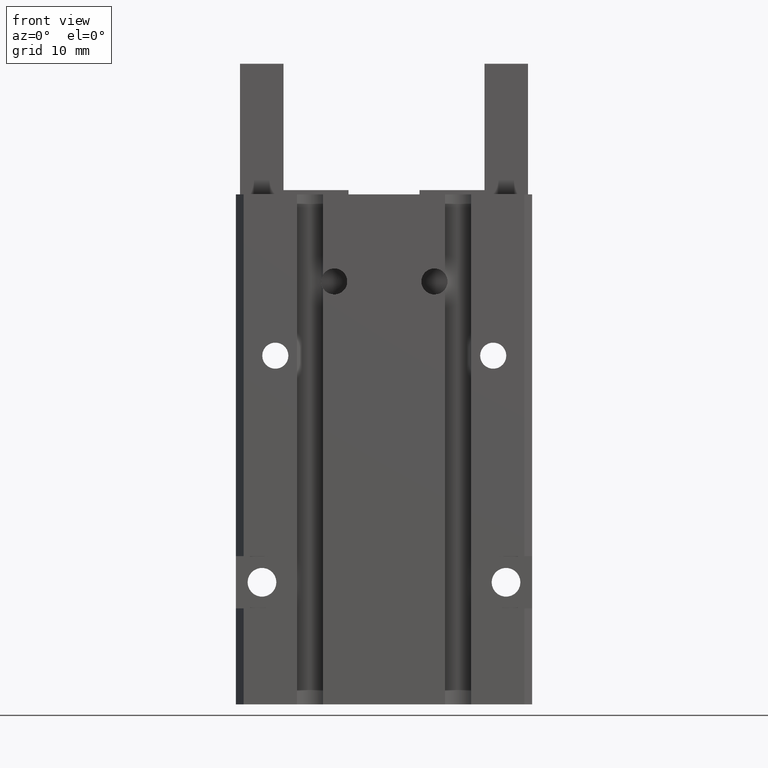
[diagram: clean part render]
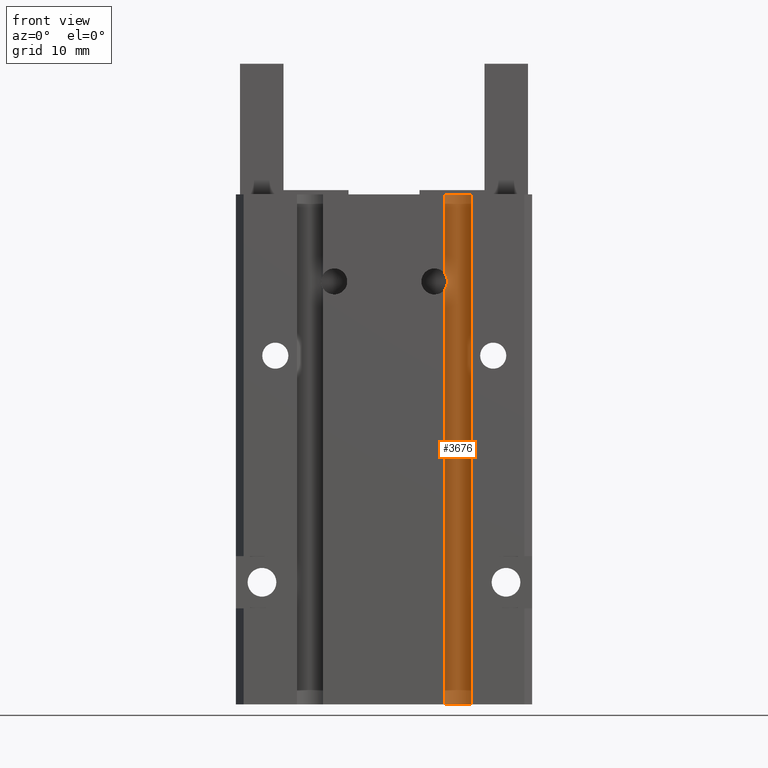
[diagram: same view with one face highlighted and labeled with its STEP entity id]
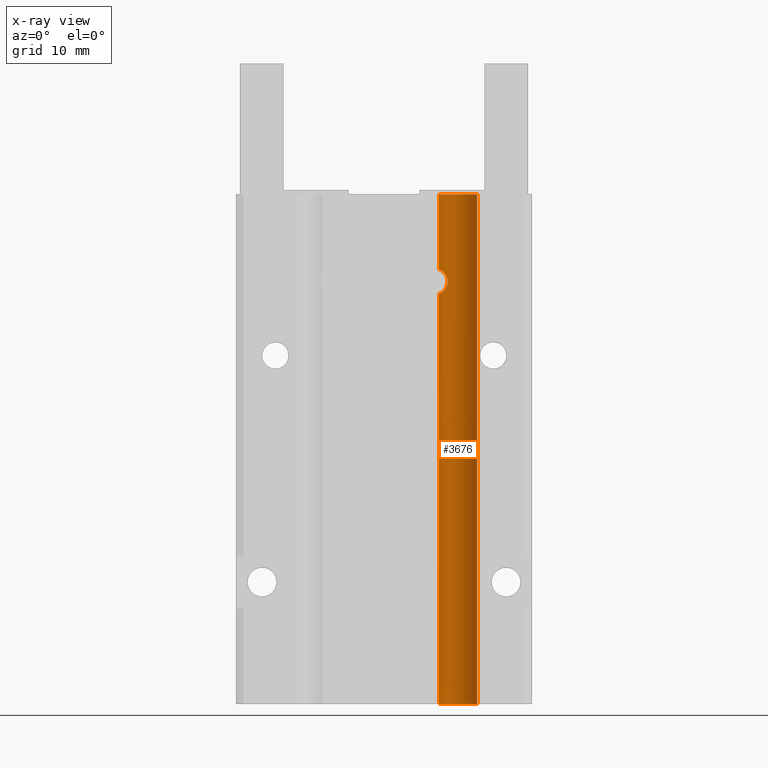
[diagram: x-ray of the same camera — body ghosted, the highlighted face saturated]
A machine part, front view. The second image highlights one B-rep face of the part: STEP entity #3676.
The next image is the same camera in x-ray: the body ghosted, the highlighted face saturated — about 0% of this face is hidden behind the body in this view.
In plain terms, the highlighted cylindrical surface (edge-blend (fillet) strip) has radius 2.2 mm, axis along (-0, -0, 1).
Its self-contained STEP definition (entity closure, byte-faithful):
#2017=CARTESIAN_POINT('',(6.26910338901688,-8.43089661098343,47.0926863634885)
);
#2018=VERTEX_POINT('Vertex105',#2017);
#2025=CARTESIAN_POINT('',(6.26910338901688,-8.43089661098343,49.9073136365115)
);
#2026=VERTEX_POINT('Vertex106',#2025);
#2027=CARTESIAN_POINT('',(6.26910338901688,-8.43089661098343,47.0926863634885)
);
#2028=CARTESIAN_POINT('',(6.2691033890167,-8.2470365732512,47.0926863634884));
#2029=CARTESIAN_POINT('',(6.29379639236543,-8.04782573945909,47.1009284644536)
);
#2030=CARTESIAN_POINT('',(6.3962783086199,-7.66794224022126,47.1452156558564));
#2031=CARTESIAN_POINT('',(6.47400672036903,-7.48736508574033,47.1822148045708)
);
#2032=CARTESIAN_POINT('',(6.60482232950823,-7.25951523297497,47.2663188890541)
);
#2033=CARTESIAN_POINT('',(6.65651861771718,-7.18086821209873,47.3028625106928)
);
#2034=CARTESIAN_POINT('',(6.7642183763471,-7.03755475224915,47.3926268254931));
#2035=CARTESIAN_POINT('',(6.82001271112032,-6.97288118975658,47.4460867863778)
);
#2036=CARTESIAN_POINT('',(6.92076342347849,-6.86625786447,47.5591893445225));
#2037=CARTESIAN_POINT('',(6.9717313963717,-6.81790269586754,47.625324694575));
#2038=CARTESIAN_POINT('',(7.06530013756798,-6.73584243046079,47.7735909866599)
);
#2039=CARTESIAN_POINT('',(7.10783910622271,-6.7020609734158,47.8557186505261));
#2040=CARTESIAN_POINT('',(7.17761833213933,-6.64933042808565,48.0301777370828)
);
#2041=CARTESIAN_POINT('',(7.20494078141355,-6.63023699625501,48.1227217836246)
);
#2042=CARTESIAN_POINT('',(7.24113316334576,-6.60536346452041,48.3110200490963)
);
#2043=CARTESIAN_POINT('',(7.24999999999999,-6.59956187181422,48.4067720233464)
);
#2044=CARTESIAN_POINT('',(7.24999999999999,-6.59956187181422,48.5932279766536)
);
#2045=CARTESIAN_POINT('',(7.24113316334576,-6.60536346452041,48.6889799509037)
);
#2046=CARTESIAN_POINT('',(7.20494078141355,-6.63023699625501,48.8772782163754)
);
#2047=CARTESIAN_POINT('',(7.17761833213933,-6.64933042808565,48.9698222629172)
);
#2048=CARTESIAN_POINT('',(7.10783910622271,-6.7020609734158,49.1442813494739));
#2049=CARTESIAN_POINT('',(7.06530013756798,-6.73584243046079,49.2264090133402)
);
#2050=CARTESIAN_POINT('',(6.9717313963717,-6.81790269586754,49.374675305425));
#2051=CARTESIAN_POINT('',(6.92076342347849,-6.86625786447,49.4408106554775));
#2052=CARTESIAN_POINT('',(6.82001271112031,-6.97288118975658,49.5539132136222)
);
#2053=CARTESIAN_POINT('',(6.7642183763471,-7.03755475224915,49.6073731745069));
#2054=CARTESIAN_POINT('',(6.65651861771718,-7.18086821209873,49.6971374893072)
);
#2055=CARTESIAN_POINT('',(6.60482232950823,-7.25951523297497,49.7336811109459)
);
#2056=CARTESIAN_POINT('',(6.47400672036903,-7.48736508574033,49.8177851954292)
);
#2057=CARTESIAN_POINT('',(6.3962783086199,-7.66794224022126,49.8547843441436));
#2058=CARTESIAN_POINT('',(6.29379639236542,-8.0478257394591,49.8990715355464));
#2059=CARTESIAN_POINT('',(6.26910338901669,-8.2470365732512,49.9073136365116));
#2060=CARTESIAN_POINT('',(6.26910338901688,-8.43089661098343,49.9073136365115)
);
#2061=B_SPLINE_CURVE_WITH_KNOTS('nurbsCrv134',3,(#2027,#2028,#2029,#2030,#2031,
#2032,#2033,#2034,#2035,#2036,#2037,#2038,#2039,#2040,#2041,#2042,#2043,#2044,
#2045,#2046,#2047,#2048,#2049,#2050,#2051,#2052,#2053,#2054,#2055,#2056,#2057,
#2058,#2059,#2060),.UNSPECIFIED.,.F.,.F.,(4,2,2,2,2,2,2,2,2,2,2,2,2,2,2,2,4),(
2.77392874089906,3.32550885409574,3.87708896729243,4.15310536462358,
4.42912176195474,4.70880569191558,4.98848962187642,5.26817355183726,
5.54785748179811,5.82754141175895,6.10722534171979,6.38690927168064,
6.66659320164148,6.94260959897263,7.21862599630378,7.77020610950047,
8.32178622269716),.UNSPECIFIED.);
#2062=EDGE_CURVE('Edge134',#2018,#2026,#2061,.T.);
#2926=CARTESIAN_POINT('',(6.26910338901688,-8.43089661098343,58.5));
#2927=VERTEX_POINT('Vertex152',#2926);
#2934=CARTESIAN_POINT('',(10.669103389017,-8.43089661098338,58.5));
#2935=VERTEX_POINT('Vertex153',#2934);
#2936=CARTESIAN_POINT('',(8.46910338901666,-8.43089661098348,58.5));
#2937=DIRECTION('',(0.,0.,-1.));
#2938=DIRECTION('',(-1.,2.42230478100058E-014,0.));
#2939=AXIS2_PLACEMENT_3D('',#2936,#2937,#2938);
#2940=CIRCLE('nurbsCrv201',#2939,2.20000000000005);
#2941=EDGE_CURVE('Edge201',#2927,#2935,#2940,.T.);
#3179=CARTESIAN_POINT('',(6.26910338901688,-8.43089661098343,54.2036568182557)
);
#3180=DIRECTION('',(-1.03364463932271E-016,2.06728927864542E-016,1.));
#3181=VECTOR('',#3180,1.);
#3182=LINE('nurbsCrv225',#3179,#3181);
#3183=EDGE_CURVE('Edge225',#2026,#2927,#3182,.T.);
#3643=CARTESIAN_POINT('',(10.6691033890163,-8.43089661098343,
1.29931675593224E-015));
#3644=VERTEX_POINT('Vertex202',#3643);
#3645=CARTESIAN_POINT('',(6.26910338901671,-8.43089661098343,
4.91076562409534E-016));
#3646=VERTEX_POINT('Vertex201',#3645);
#3647=CARTESIAN_POINT('',(8.46910338901653,-8.43089661098322,0.));
#3648=DIRECTION('',(0.,0.,1.));
#3649=DIRECTION('',(1.,-9.68921912400216E-014,0.));
#3650=AXIS2_PLACEMENT_3D('',#3647,#3648,#3649);
#3651=CIRCLE('nurbsCrv260',#3650,2.1999999999998);
#3652=EDGE_CURVE('Edge260',#3644,#3646,#3651,.T.);
#3653=ORIENTED_EDGE('Edgeuse437',*,*,#3652,.F.);
#3654=CARTESIAN_POINT('',(10.6691033890167,-8.4308966109834,29.25));
#3655=DIRECTION('',(1.05670458138682E-014,9.10952225333462E-016,1.));
#3656=VECTOR('',#3655,1.);
#3657=LINE('nurbsCrv261',#3654,#3656);
#3658=EDGE_CURVE('Edge261',#3644,#2935,#3657,.T.);
#3659=ORIENTED_EDGE('Edgeuse438',*,*,#3658,.T.);
#3660=ORIENTED_EDGE('Edgeuse439',*,*,#2941,.F.);
#3661=ORIENTED_EDGE('Edgeuse440',*,*,#3183,.F.);
#3662=ORIENTED_EDGE('Edgeuse441',*,*,#2062,.F.);
#3663=CARTESIAN_POINT('',(6.26910338901679,-8.43089661098343,23.5463431817443)
);
#3664=DIRECTION('',(3.54572133801828E-015,-1.13161319298456E-016,1.));
#3665=VECTOR('',#3664,1.);
#3666=LINE('nurbsCrv262',#3663,#3665);
#3667=EDGE_CURVE('Edge262',#3646,#2018,#3666,.T.);
#3668=ORIENTED_EDGE('Edgeuse442',*,*,#3667,.F.);
#3669=EDGE_LOOP('',(#3653,#3659,#3660,#3661,#3662,#3668));
#3670=FACE_OUTER_BOUND('',#3669,.T.);
#3671=CARTESIAN_POINT('',(8.46910338901653,-8.43089661098343,-2.925));
#3672=DIRECTION('',(-1.09065848598258E-030,-9.78298776838282E-016,1.));
#3673=DIRECTION('',(2.88657986402541E-015,-1.,-9.84761367484316E-016));
#3674=AXIS2_PLACEMENT_3D('',#3671,#3672,#3673);
#3675=CYLINDRICAL_SURFACE('nurbsSrf81',#3674,2.2);
#3676=ADVANCED_FACE('Face81',(#3670),#3675,.F.);